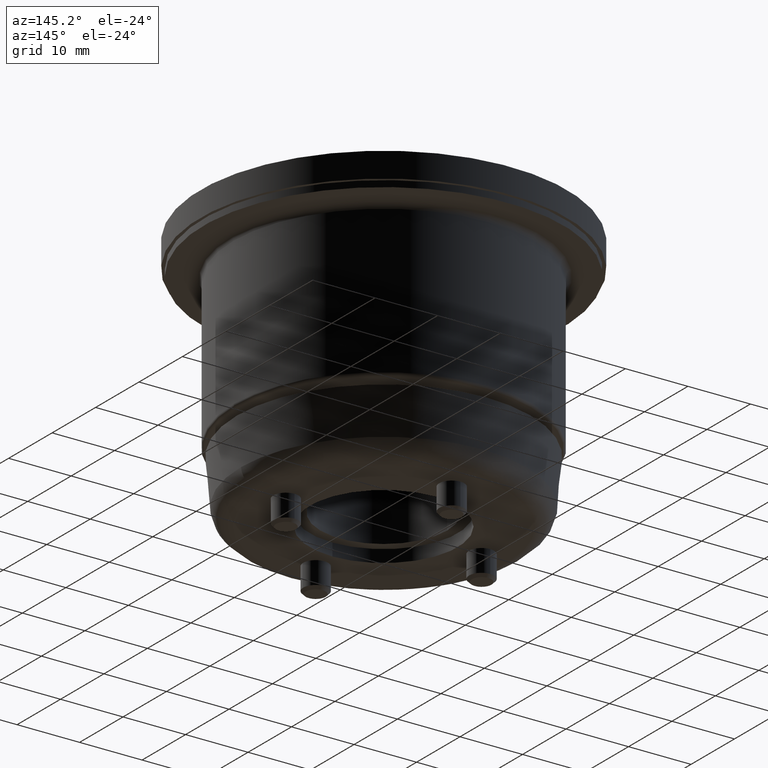
[diagram: clean part render]
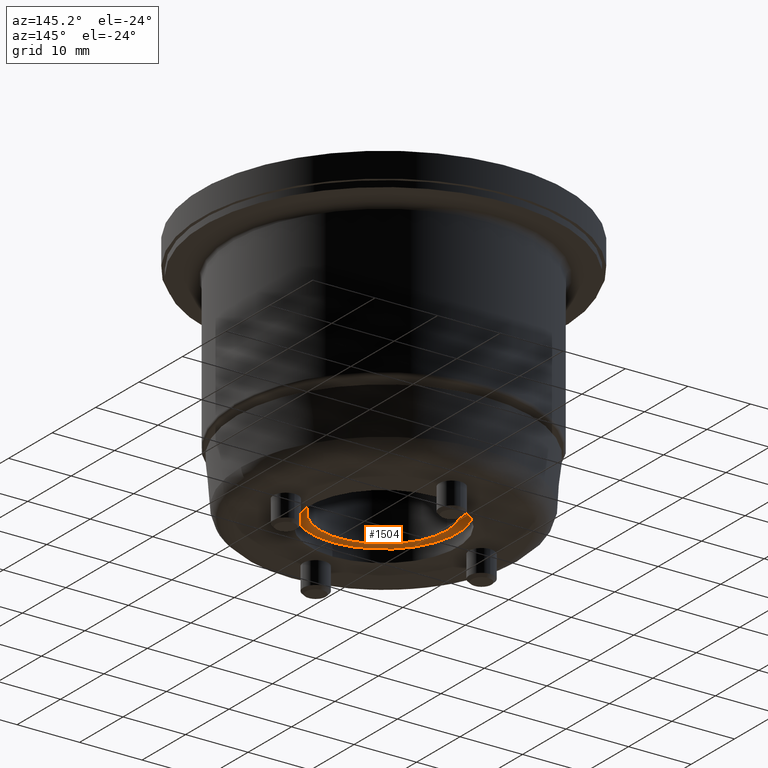
[diagram: same view with one face highlighted and labeled with its STEP entity id]
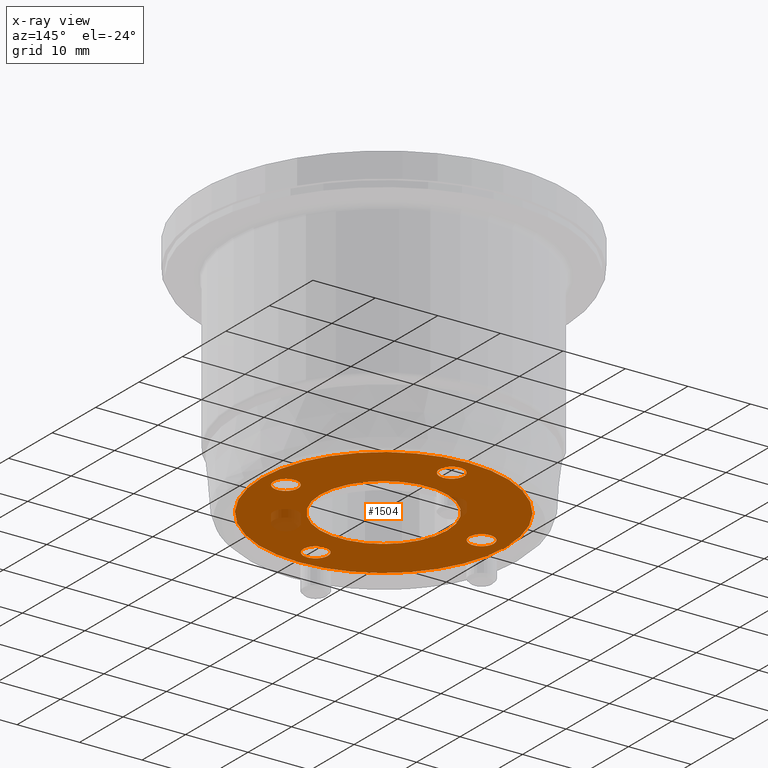
[diagram: x-ray of the same camera — body ghosted, the highlighted face saturated]
A machine part, auxiliary view. The second image highlights one B-rep face of the part: STEP entity #1504.
The next image is the same camera in x-ray: the body ghosted, the highlighted face saturated — about 4% of this face is hidden behind the body in this view.
In plain terms, the highlighted planar face has unit normal (0, -0, -1).
Its self-contained STEP definition (entity closure, byte-faithful):
#103=FACE_BOUND('',#396,.T.);
#104=FACE_BOUND('',#397,.T.);
#105=FACE_BOUND('',#398,.T.);
#106=FACE_BOUND('',#399,.T.);
#107=FACE_BOUND('',#400,.T.);
#149=PLANE('',#1714);
#311=FACE_OUTER_BOUND('',#395,.T.);
#395=EDGE_LOOP('',(#1068,#1069));
#396=EDGE_LOOP('',(#1070));
#397=EDGE_LOOP('',(#1071));
#398=EDGE_LOOP('',(#1072));
#399=EDGE_LOOP('',(#1073));
#400=EDGE_LOOP('',(#1074));
#529=CIRCLE('',#1712,19.553910529336);
#530=CIRCLE('',#1713,19.553910529336);
#531=CIRCLE('',#1715,10.15);
#532=CIRCLE('',#1716,1.95);
#533=CIRCLE('',#1717,1.95);
#534=CIRCLE('',#1718,1.95);
#535=CIRCLE('',#1719,1.95);
#679=VERTEX_POINT('',#2529);
#680=VERTEX_POINT('',#2531);
#681=VERTEX_POINT('',#2535);
#682=VERTEX_POINT('',#2537);
#683=VERTEX_POINT('',#2539);
#684=VERTEX_POINT('',#2541);
#685=VERTEX_POINT('',#2543);
#836=EDGE_CURVE('',#679,#680,#529,.T.);
#837=EDGE_CURVE('',#680,#679,#530,.T.);
#838=EDGE_CURVE('',#681,#681,#531,.T.);
#839=EDGE_CURVE('',#682,#682,#532,.T.);
#840=EDGE_CURVE('',#683,#683,#533,.T.);
#841=EDGE_CURVE('',#684,#684,#534,.T.);
#842=EDGE_CURVE('',#685,#685,#535,.T.);
#1068=ORIENTED_EDGE('',*,*,#837,.F.);
#1069=ORIENTED_EDGE('',*,*,#836,.F.);
#1070=ORIENTED_EDGE('',*,*,#838,.T.);
#1071=ORIENTED_EDGE('',*,*,#839,.T.);
#1072=ORIENTED_EDGE('',*,*,#840,.T.);
#1073=ORIENTED_EDGE('',*,*,#841,.T.);
#1074=ORIENTED_EDGE('',*,*,#842,.T.);
#1504=ADVANCED_FACE('',(#311,#103,#104,#105,#106,#107),#149,.T.);
#1712=AXIS2_PLACEMENT_3D('',#2532,#1979,#1980);
#1713=AXIS2_PLACEMENT_3D('',#2533,#1981,#1982);
#1714=AXIS2_PLACEMENT_3D('',#2534,#1983,#1984);
#1715=AXIS2_PLACEMENT_3D('',#2536,#1985,#1986);
#1716=AXIS2_PLACEMENT_3D('',#2538,#1987,#1988);
#1717=AXIS2_PLACEMENT_3D('',#2540,#1989,#1990);
#1718=AXIS2_PLACEMENT_3D('',#2542,#1991,#1992);
#1719=AXIS2_PLACEMENT_3D('',#2544,#1993,#1994);
#1979=DIRECTION('center_axis',(0.,0.,1.));
#1980=DIRECTION('ref_axis',(0.,1.,0.));
#1981=DIRECTION('center_axis',(0.,0.,1.));
#1982=DIRECTION('ref_axis',(0.,1.,0.));
#1983=DIRECTION('center_axis',(0.,0.,-1.));
#1984=DIRECTION('ref_axis',(-1.,0.,0.));
#1985=DIRECTION('center_axis',(0.,0.,1.));
#1986=DIRECTION('ref_axis',(-1.,0.,0.));
#1987=DIRECTION('center_axis',(0.,0.,1.));
#1988=DIRECTION('ref_axis',(-1.,0.,0.));
#1989=DIRECTION('center_axis',(0.,0.,1.));
#1990=DIRECTION('ref_axis',(-6.12323399573676E-17,-1.,0.));
#1991=DIRECTION('center_axis',(0.,0.,1.));
#1992=DIRECTION('ref_axis',(1.,-1.22464679914735E-16,0.));
#1993=DIRECTION('center_axis',(0.,0.,1.));
#1994=DIRECTION('ref_axis',(1.83697019872103E-16,1.,0.));
#2529=CARTESIAN_POINT('',(-19.553910529336,-2.3946633940565E-15,0.));
#2531=CARTESIAN_POINT('',(2.3946633940565E-15,-19.553910529336,0.));
#2532=CARTESIAN_POINT('Origin',(0.,0.,0.));
#2533=CARTESIAN_POINT('Origin',(0.,0.,0.));
#2534=CARTESIAN_POINT('Origin',(-5.55111512312578E-16,5.55111512312578E-16,
0.));
#2535=CARTESIAN_POINT('',(10.15,1.79812801344714E-15,0.));
#2536=CARTESIAN_POINT('Origin',(-5.55111512312578E-16,5.55111512312578E-16,
0.));
#2537=CARTESIAN_POINT('',(-13.7,-5.41336204779896E-15,0.));
#2538=CARTESIAN_POINT('Origin',(-15.65,-5.65216817363269E-15,0.));
#2539=CARTESIAN_POINT('',(4.57447899038302E-15,-13.7,0.));
#2540=CARTESIAN_POINT('Origin',(4.69388205329989E-15,-15.65,0.));
#2541=CARTESIAN_POINT('',(13.7,4.84581895759224E-15,0.));
#2542=CARTESIAN_POINT('Origin',(15.65,4.84581895759224E-15,0.));
#2543=CARTESIAN_POINT('',(-4.00693590017631E-15,13.7,0.));
#2544=CARTESIAN_POINT('Origin',(-3.88753283725944E-15,15.65,0.));